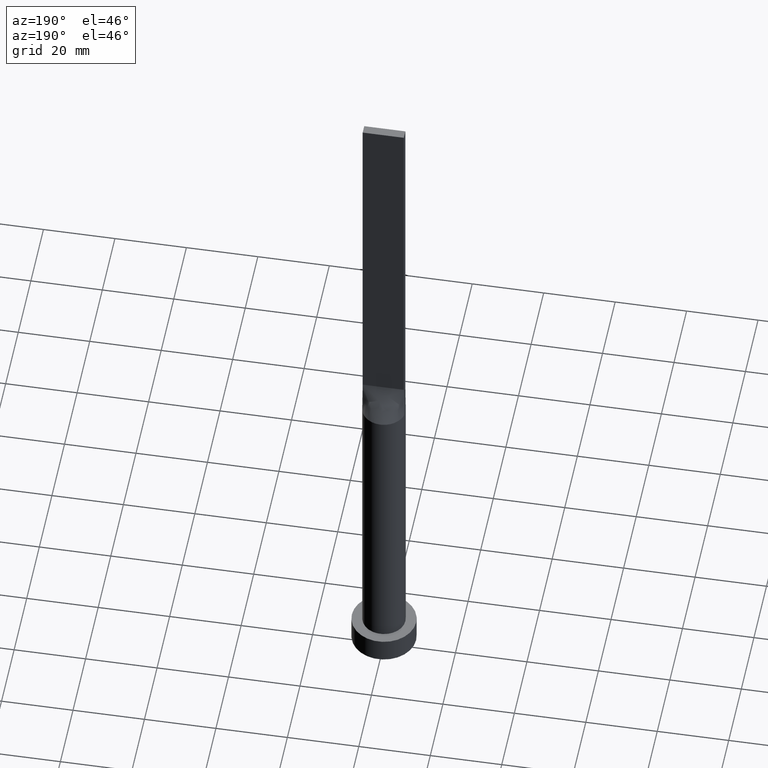
[diagram: clean part render]
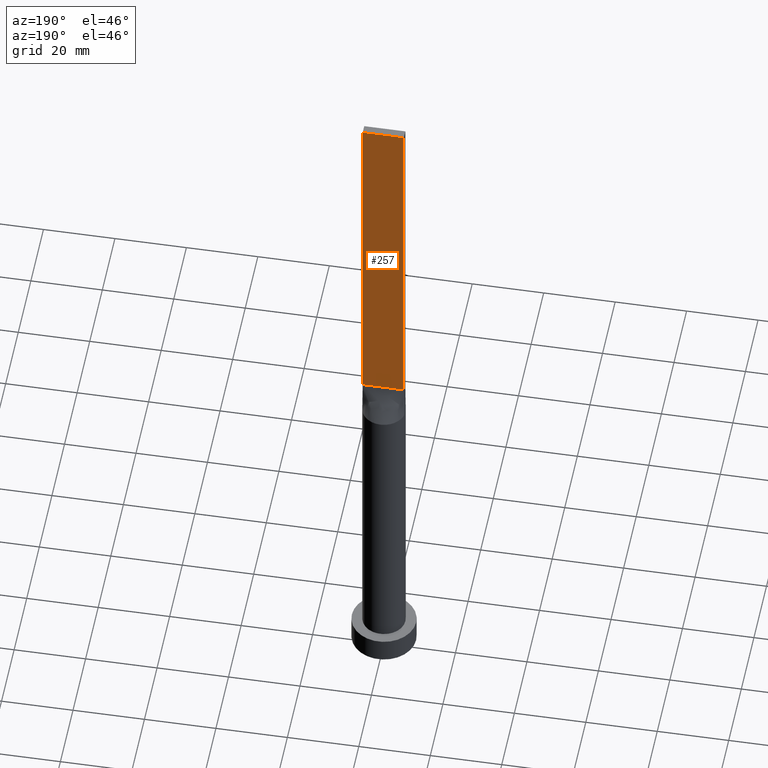
[diagram: same view with one face highlighted and labeled with its STEP entity id]
A machine part, auxiliary view. The second image highlights one B-rep face of the part: STEP entity #257.
In plain terms, the highlighted planar face has unit normal (0, -1, 0).
Its self-contained STEP definition (entity closure, byte-faithful):
#13 = DIRECTION ( 'NONE',  ( 0.000000000000000000, -1.000000000000000000, 0.000000000000000000 ) ) ;
#17 = AXIS2_PLACEMENT_3D ( 'NONE', #291, #13, #245 ) ;
#22 = LINE ( 'NONE', #573, #599 ) ;
#29 = DIRECTION ( 'NONE',  ( -1.000000000000000000, 0.000000000000000000, 0.000000000000000000 ) ) ;
#35 = EDGE_CURVE ( 'NONE', #601, #399, #211, .T. ) ;
#83 = VECTOR ( 'NONE', #484, 1000.000000000000000 ) ;
#91 = ORIENTED_EDGE ( 'NONE', *, *, #378, .T. ) ;
#104 = CARTESIAN_POINT ( 'NONE',  ( 5.750000000000000000, 1.250000000000000222, 100.0000000000000000 ) ) ;
#130 = CARTESIAN_POINT ( 'NONE',  ( 5.750000000000000000, 1.250000000000000222, 200.0000000000000000 ) ) ;
#136 = VERTEX_POINT ( 'NONE', #502 ) ;
#144 = PLANE ( 'NONE',  #17 ) ;
#148 = VECTOR ( 'NONE', #29, 1000.000000000000000 ) ;
#155 = DIRECTION ( 'NONE',  ( -0.000000000000000000, -0.000000000000000000, -1.000000000000000000 ) ) ;
#180 = DIRECTION ( 'NONE',  ( -0.000000000000000000, -0.000000000000000000, -1.000000000000000000 ) ) ;
#203 = VECTOR ( 'NONE', #180, 1000.000000000000000 ) ;
#211 = LINE ( 'NONE', #535, #148 ) ;
#240 = VERTEX_POINT ( 'NONE', #104 ) ;
#245 = DIRECTION ( 'NONE',  ( 0.000000000000000000, -0.000000000000000000, -1.000000000000000000 ) ) ;
#257 = ADVANCED_FACE ( 'NONE', ( #564 ), #144, .F. ) ;
#260 = CARTESIAN_POINT ( 'NONE',  ( -5.750000000000000000, 1.250000000000000222, 100.0000000000000000 ) ) ;
#291 = CARTESIAN_POINT ( 'NONE',  ( 5.750000000000000000, 1.250000000000000222, 200.0000000000000000 ) ) ;
#294 = EDGE_LOOP ( 'NONE', ( #91, #389, #417, #565 ) ) ;
#378 = EDGE_CURVE ( 'NONE', #240, #136, #390, .T. ) ;
#386 = EDGE_CURVE ( 'NONE', #399, #136, #22, .T. ) ;
#389 = ORIENTED_EDGE ( 'NONE', *, *, #386, .F. ) ;
#390 = LINE ( 'NONE', #260, #83 ) ;
#399 = VERTEX_POINT ( 'NONE', #549 ) ;
#417 = ORIENTED_EDGE ( 'NONE', *, *, #35, .F. ) ;
#477 = EDGE_CURVE ( 'NONE', #601, #240, #597, .T. ) ;
#484 = DIRECTION ( 'NONE',  ( -1.000000000000000000, -0.000000000000000000, -0.000000000000000000 ) ) ;
#502 = CARTESIAN_POINT ( 'NONE',  ( -5.750000000000000000, 1.250000000000000222, 100.0000000000000000 ) ) ;
#535 = CARTESIAN_POINT ( 'NONE',  ( 5.750000000000000000, 1.250000000000000222, 200.0000000000000000 ) ) ;
#544 = CARTESIAN_POINT ( 'NONE',  ( 5.750000000000000000, 1.250000000000000222, 200.0000000000000000 ) ) ;
#549 = CARTESIAN_POINT ( 'NONE',  ( -5.750000000000000000, 1.250000000000000222, 200.0000000000000000 ) ) ;
#564 = FACE_OUTER_BOUND ( 'NONE', #294, .T. ) ;
#565 = ORIENTED_EDGE ( 'NONE', *, *, #477, .T. ) ;
#573 = CARTESIAN_POINT ( 'NONE',  ( -5.750000000000000000, 1.250000000000000222, 200.0000000000000000 ) ) ;
#597 = LINE ( 'NONE', #544, #203 ) ;
#599 = VECTOR ( 'NONE', #155, 1000.000000000000000 ) ;
#601 = VERTEX_POINT ( 'NONE', #130 ) ;